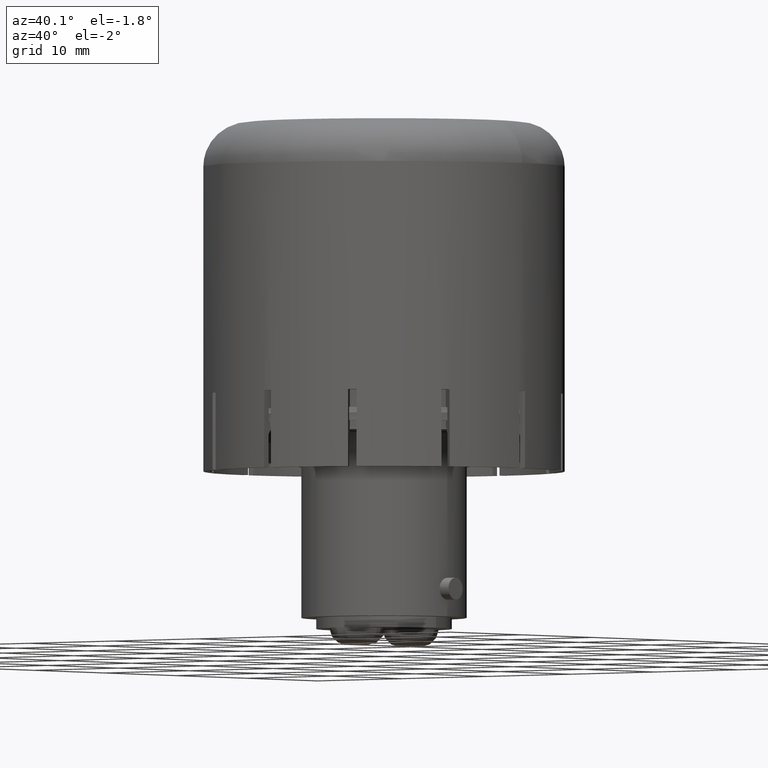
[diagram: clean part render]
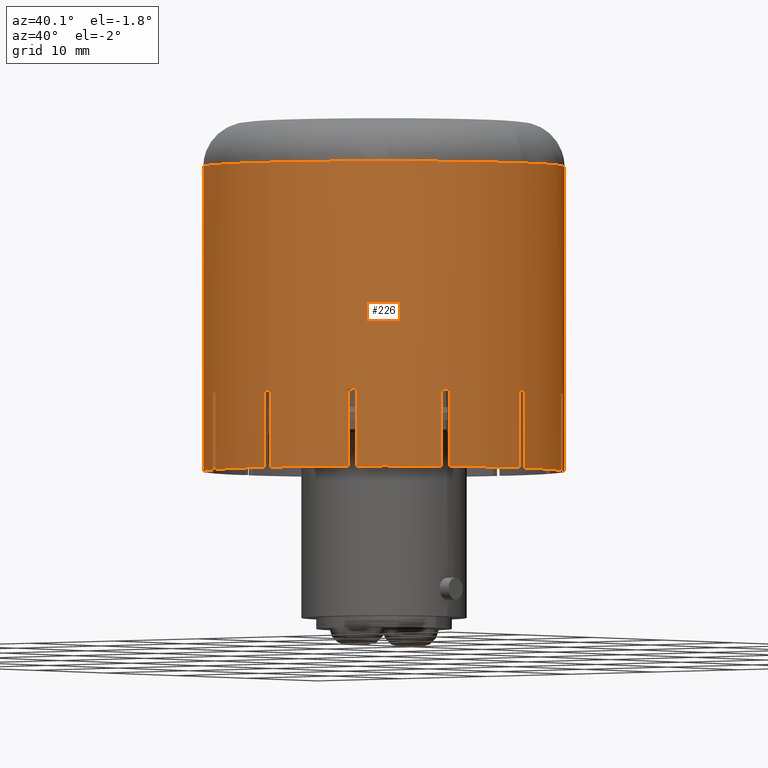
[diagram: same view with one face highlighted and labeled with its STEP entity id]
A machine part, auxiliary view. The second image highlights one B-rep face of the part: STEP entity #226.
In plain terms, the highlighted cylindrical surface (bore or boss wall) has radius 16.4 mm, axis along (0, 0, -1).
Its self-contained STEP definition (entity closure, byte-faithful):
#58=FACE_BOUND('',#638,.T.);
#59=FACE_BOUND('',#639,.T.);
#226=ADVANCED_FACE('',(#58,#59),#401,.T.);
#401=CYLINDRICAL_SURFACE('',#3757,16.4);
#638=EDGE_LOOP('',(#1135));
#639=EDGE_LOOP('',(#1136,#1137,#1138,#1139,#1140,#1141,#1142,#1143,#1144,
#1145,#1146,#1147,#1148,#1149,#1150,#1151,#1152,#1153,#1154,#1155,#1156,
#1157,#1158,#1159,#1160,#1161,#1162,#1163,#1164,#1165,#1166,#1167,#1168,
#1169,#1170,#1171,#1172,#1173,#1174,#1175,#1176,#1177,#1178,#1179,#1180,
#1181,#1182,#1183));
#866=CIRCLE('',#3732,16.4);
#867=CIRCLE('',#3733,16.4);
#868=CIRCLE('',#3734,16.4);
#869=CIRCLE('',#3735,16.4);
#870=CIRCLE('',#3736,16.4);
#871=CIRCLE('',#3737,16.4);
#872=CIRCLE('',#3738,16.4);
#873=CIRCLE('',#3739,16.4);
#874=CIRCLE('',#3740,16.4);
#875=CIRCLE('',#3741,16.4);
#876=CIRCLE('',#3742,16.4);
#877=CIRCLE('',#3743,16.4);
#878=CIRCLE('',#3744,16.4);
#879=CIRCLE('',#3745,16.4);
#880=CIRCLE('',#3746,16.4);
#881=CIRCLE('',#3747,16.4);
#882=CIRCLE('',#3748,16.4);
#883=CIRCLE('',#3749,16.4);
#884=CIRCLE('',#3750,16.4);
#885=CIRCLE('',#3751,16.4);
#886=CIRCLE('',#3752,16.4);
#887=CIRCLE('',#3753,16.4);
#888=CIRCLE('',#3754,16.4);
#889=CIRCLE('',#3755,16.4);
#890=CIRCLE('',#3756,16.4);
#1135=ORIENTED_EDGE('',*,*,#2572,.T.);
#1136=ORIENTED_EDGE('',*,*,#2573,.F.);
#1137=ORIENTED_EDGE('',*,*,#2574,.F.);
#1138=ORIENTED_EDGE('',*,*,#2575,.T.);
#1139=ORIENTED_EDGE('',*,*,#2576,.F.);
#1140=ORIENTED_EDGE('',*,*,#2577,.F.);
#1141=ORIENTED_EDGE('',*,*,#2578,.F.);
#1142=ORIENTED_EDGE('',*,*,#2579,.T.);
#1143=ORIENTED_EDGE('',*,*,#2580,.F.);
#1144=ORIENTED_EDGE('',*,*,#2581,.F.);
#1145=ORIENTED_EDGE('',*,*,#2582,.F.);
#1146=ORIENTED_EDGE('',*,*,#2583,.T.);
#1147=ORIENTED_EDGE('',*,*,#2584,.F.);
#1148=ORIENTED_EDGE('',*,*,#2585,.F.);
#1149=ORIENTED_EDGE('',*,*,#2586,.F.);
#1150=ORIENTED_EDGE('',*,*,#2587,.T.);
#1151=ORIENTED_EDGE('',*,*,#2588,.F.);
#1152=ORIENTED_EDGE('',*,*,#2589,.F.);
#1153=ORIENTED_EDGE('',*,*,#2590,.F.);
#1154=ORIENTED_EDGE('',*,*,#2591,.T.);
#1155=ORIENTED_EDGE('',*,*,#2592,.F.);
#1156=ORIENTED_EDGE('',*,*,#2593,.F.);
#1157=ORIENTED_EDGE('',*,*,#2594,.F.);
#1158=ORIENTED_EDGE('',*,*,#2595,.T.);
#1159=ORIENTED_EDGE('',*,*,#2596,.F.);
#1160=ORIENTED_EDGE('',*,*,#2597,.F.);
#1161=ORIENTED_EDGE('',*,*,#2598,.F.);
#1162=ORIENTED_EDGE('',*,*,#2599,.T.);
#1163=ORIENTED_EDGE('',*,*,#2600,.F.);
#1164=ORIENTED_EDGE('',*,*,#2601,.F.);
#1165=ORIENTED_EDGE('',*,*,#2602,.F.);
#1166=ORIENTED_EDGE('',*,*,#2603,.T.);
#1167=ORIENTED_EDGE('',*,*,#2604,.F.);
#1168=ORIENTED_EDGE('',*,*,#2605,.F.);
#1169=ORIENTED_EDGE('',*,*,#2606,.F.);
#1170=ORIENTED_EDGE('',*,*,#2607,.T.);
#1171=ORIENTED_EDGE('',*,*,#2608,.F.);
#1172=ORIENTED_EDGE('',*,*,#2609,.F.);
#1173=ORIENTED_EDGE('',*,*,#2610,.F.);
#1174=ORIENTED_EDGE('',*,*,#2611,.T.);
#1175=ORIENTED_EDGE('',*,*,#2612,.F.);
#1176=ORIENTED_EDGE('',*,*,#2613,.F.);
#1177=ORIENTED_EDGE('',*,*,#2614,.F.);
#1178=ORIENTED_EDGE('',*,*,#2615,.T.);
#1179=ORIENTED_EDGE('',*,*,#2616,.F.);
#1180=ORIENTED_EDGE('',*,*,#2617,.F.);
#1181=ORIENTED_EDGE('',*,*,#2618,.F.);
#1182=ORIENTED_EDGE('',*,*,#2619,.T.);
#1183=ORIENTED_EDGE('',*,*,#2620,.F.);
#2221=VERTEX_POINT('',#5400);
#2222=VERTEX_POINT('',#5402);
#2223=VERTEX_POINT('',#5403);
#2224=VERTEX_POINT('',#5405);
#2225=VERTEX_POINT('',#5407);
#2226=VERTEX_POINT('',#5409);
#2227=VERTEX_POINT('',#5411);
#2228=VERTEX_POINT('',#5413);
#2229=VERTEX_POINT('',#5415);
#2230=VERTEX_POINT('',#5417);
#2231=VERTEX_POINT('',#5419);
#2232=VERTEX_POINT('',#5421);
#2233=VERTEX_POINT('',#5423);
#2234=VERTEX_POINT('',#5425);
#2235=VERTEX_POINT('',#5427);
#2236=VERTEX_POINT('',#5429);
#2237=VERTEX_POINT('',#5431);
#2238=VERTEX_POINT('',#5433);
#2239=VERTEX_POINT('',#5435);
#2240=VERTEX_POINT('',#5437);
#2241=VERTEX_POINT('',#5439);
#2242=VERTEX_POINT('',#5441);
#2243=VERTEX_POINT('',#5443);
#2244=VERTEX_POINT('',#5445);
#2245=VERTEX_POINT('',#5447);
#2246=VERTEX_POINT('',#5449);
#2247=VERTEX_POINT('',#5451);
#2248=VERTEX_POINT('',#5453);
#2249=VERTEX_POINT('',#5455);
#2250=VERTEX_POINT('',#5457);
#2251=VERTEX_POINT('',#5459);
#2252=VERTEX_POINT('',#5461);
#2253=VERTEX_POINT('',#5463);
#2254=VERTEX_POINT('',#5465);
#2255=VERTEX_POINT('',#5467);
#2256=VERTEX_POINT('',#5469);
#2257=VERTEX_POINT('',#5471);
#2258=VERTEX_POINT('',#5473);
#2259=VERTEX_POINT('',#5475);
#2260=VERTEX_POINT('',#5477);
#2261=VERTEX_POINT('',#5479);
#2262=VERTEX_POINT('',#5481);
#2263=VERTEX_POINT('',#5483);
#2264=VERTEX_POINT('',#5485);
#2265=VERTEX_POINT('',#5487);
#2266=VERTEX_POINT('',#5489);
#2267=VERTEX_POINT('',#5491);
#2268=VERTEX_POINT('',#5493);
#2269=VERTEX_POINT('',#5495);
#2572=EDGE_CURVE('',#2221,#2221,#866,.T.);
#2573=EDGE_CURVE('',#2222,#2223,#3067,.T.);
#2574=EDGE_CURVE('',#2224,#2222,#867,.T.);
#2575=EDGE_CURVE('',#2224,#2225,#3068,.T.);
#2576=EDGE_CURVE('',#2226,#2225,#868,.T.);
#2577=EDGE_CURVE('',#2227,#2226,#3069,.T.);
#2578=EDGE_CURVE('',#2228,#2227,#869,.T.);
#2579=EDGE_CURVE('',#2228,#2229,#3070,.T.);
#2580=EDGE_CURVE('',#2230,#2229,#870,.T.);
#2581=EDGE_CURVE('',#2231,#2230,#3071,.T.);
#2582=EDGE_CURVE('',#2232,#2231,#871,.T.);
#2583=EDGE_CURVE('',#2232,#2233,#3072,.T.);
#2584=EDGE_CURVE('',#2234,#2233,#872,.T.);
#2585=EDGE_CURVE('',#2235,#2234,#3073,.T.);
#2586=EDGE_CURVE('',#2236,#2235,#873,.T.);
#2587=EDGE_CURVE('',#2236,#2237,#3074,.T.);
#2588=EDGE_CURVE('',#2238,#2237,#874,.T.);
#2589=EDGE_CURVE('',#2239,#2238,#3075,.T.);
#2590=EDGE_CURVE('',#2240,#2239,#875,.T.);
#2591=EDGE_CURVE('',#2240,#2241,#3076,.T.);
#2592=EDGE_CURVE('',#2242,#2241,#876,.T.);
#2593=EDGE_CURVE('',#2243,#2242,#3077,.T.);
#2594=EDGE_CURVE('',#2244,#2243,#877,.T.);
#2595=EDGE_CURVE('',#2244,#2245,#3078,.T.);
#2596=EDGE_CURVE('',#2246,#2245,#878,.T.);
#2597=EDGE_CURVE('',#2247,#2246,#3079,.T.);
#2598=EDGE_CURVE('',#2248,#2247,#879,.T.);
#2599=EDGE_CURVE('',#2248,#2249,#3080,.T.);
#2600=EDGE_CURVE('',#2250,#2249,#880,.T.);
#2601=EDGE_CURVE('',#2251,#2250,#3081,.T.);
#2602=EDGE_CURVE('',#2252,#2251,#881,.T.);
#2603=EDGE_CURVE('',#2252,#2253,#3082,.T.);
#2604=EDGE_CURVE('',#2254,#2253,#882,.T.);
#2605=EDGE_CURVE('',#2255,#2254,#3083,.T.);
#2606=EDGE_CURVE('',#2256,#2255,#883,.T.);
#2607=EDGE_CURVE('',#2256,#2257,#3084,.T.);
#2608=EDGE_CURVE('',#2258,#2257,#884,.T.);
#2609=EDGE_CURVE('',#2259,#2258,#3085,.T.);
#2610=EDGE_CURVE('',#2260,#2259,#885,.T.);
#2611=EDGE_CURVE('',#2260,#2261,#3086,.T.);
#2612=EDGE_CURVE('',#2262,#2261,#886,.T.);
#2613=EDGE_CURVE('',#2263,#2262,#3087,.T.);
#2614=EDGE_CURVE('',#2264,#2263,#887,.T.);
#2615=EDGE_CURVE('',#2264,#2265,#3088,.T.);
#2616=EDGE_CURVE('',#2266,#2265,#888,.T.);
#2617=EDGE_CURVE('',#2267,#2266,#3089,.T.);
#2618=EDGE_CURVE('',#2268,#2267,#889,.T.);
#2619=EDGE_CURVE('',#2268,#2269,#3090,.T.);
#2620=EDGE_CURVE('',#2223,#2269,#890,.T.);
#3067=LINE('',#5401,#3387);
#3068=LINE('',#5406,#3388);
#3069=LINE('',#5410,#3389);
#3070=LINE('',#5414,#3390);
#3071=LINE('',#5418,#3391);
#3072=LINE('',#5422,#3392);
#3073=LINE('',#5426,#3393);
#3074=LINE('',#5430,#3394);
#3075=LINE('',#5434,#3395);
#3076=LINE('',#5438,#3396);
#3077=LINE('',#5442,#3397);
#3078=LINE('',#5446,#3398);
#3079=LINE('',#5450,#3399);
#3080=LINE('',#5454,#3400);
#3081=LINE('',#5458,#3401);
#3082=LINE('',#5462,#3402);
#3083=LINE('',#5466,#3403);
#3084=LINE('',#5470,#3404);
#3085=LINE('',#5474,#3405);
#3086=LINE('',#5478,#3406);
#3087=LINE('',#5482,#3407);
#3088=LINE('',#5486,#3408);
#3089=LINE('',#5490,#3409);
#3090=LINE('',#5494,#3410);
#3387=VECTOR('',#4256,1.);
#3388=VECTOR('',#4259,1.);
#3389=VECTOR('',#4262,1.);
#3390=VECTOR('',#4265,1.);
#3391=VECTOR('',#4268,1.);
#3392=VECTOR('',#4271,1.);
#3393=VECTOR('',#4274,1.);
#3394=VECTOR('',#4277,1.);
#3395=VECTOR('',#4280,1.);
#3396=VECTOR('',#4283,1.);
#3397=VECTOR('',#4286,1.);
#3398=VECTOR('',#4289,1.);
#3399=VECTOR('',#4292,1.);
#3400=VECTOR('',#4295,1.);
#3401=VECTOR('',#4298,1.);
#3402=VECTOR('',#4301,1.);
#3403=VECTOR('',#4304,1.);
#3404=VECTOR('',#4307,1.);
#3405=VECTOR('',#4310,1.);
#3406=VECTOR('',#4313,1.);
#3407=VECTOR('',#4316,1.);
#3408=VECTOR('',#4319,1.);
#3409=VECTOR('',#4322,1.);
#3410=VECTOR('',#4325,1.);
#3732=AXIS2_PLACEMENT_3D('',#5399,#4254,#4255);
#3733=AXIS2_PLACEMENT_3D('',#5404,#4257,#4258);
#3734=AXIS2_PLACEMENT_3D('',#5408,#4260,#4261);
#3735=AXIS2_PLACEMENT_3D('',#5412,#4263,#4264);
#3736=AXIS2_PLACEMENT_3D('',#5416,#4266,#4267);
#3737=AXIS2_PLACEMENT_3D('',#5420,#4269,#4270);
#3738=AXIS2_PLACEMENT_3D('',#5424,#4272,#4273);
#3739=AXIS2_PLACEMENT_3D('',#5428,#4275,#4276);
#3740=AXIS2_PLACEMENT_3D('',#5432,#4278,#4279);
#3741=AXIS2_PLACEMENT_3D('',#5436,#4281,#4282);
#3742=AXIS2_PLACEMENT_3D('',#5440,#4284,#4285);
#3743=AXIS2_PLACEMENT_3D('',#5444,#4287,#4288);
#3744=AXIS2_PLACEMENT_3D('',#5448,#4290,#4291);
#3745=AXIS2_PLACEMENT_3D('',#5452,#4293,#4294);
#3746=AXIS2_PLACEMENT_3D('',#5456,#4296,#4297);
#3747=AXIS2_PLACEMENT_3D('',#5460,#4299,#4300);
#3748=AXIS2_PLACEMENT_3D('',#5464,#4302,#4303);
#3749=AXIS2_PLACEMENT_3D('',#5468,#4305,#4306);
#3750=AXIS2_PLACEMENT_3D('',#5472,#4308,#4309);
#3751=AXIS2_PLACEMENT_3D('',#5476,#4311,#4312);
#3752=AXIS2_PLACEMENT_3D('',#5480,#4314,#4315);
#3753=AXIS2_PLACEMENT_3D('',#5484,#4317,#4318);
#3754=AXIS2_PLACEMENT_3D('',#5488,#4320,#4321);
#3755=AXIS2_PLACEMENT_3D('',#5492,#4323,#4324);
#3756=AXIS2_PLACEMENT_3D('',#5496,#4326,#4327);
#3757=AXIS2_PLACEMENT_3D('',#5497,#4328,#4329);
#4254=DIRECTION('',(0.,0.,-1.));
#4255=DIRECTION('',(1.,0.,0.));
#4256=DIRECTION('',(0.,0.,1.));
#4257=DIRECTION('',(0.,0.,-1.));
#4258=DIRECTION('',(1.,0.,0.));
#4259=DIRECTION('',(0.,0.,1.));
#4260=DIRECTION('',(0.,0.,-1.));
#4261=DIRECTION('',(-1.,0.,0.));
#4262=DIRECTION('',(0.,0.,1.));
#4263=DIRECTION('',(0.,0.,-1.));
#4264=DIRECTION('',(1.,0.,0.));
#4265=DIRECTION('',(0.,0.,1.));
#4266=DIRECTION('',(0.,0.,-1.));
#4267=DIRECTION('',(-1.,0.,0.));
#4268=DIRECTION('',(0.,0.,1.));
#4269=DIRECTION('',(0.,0.,-1.));
#4270=DIRECTION('',(1.,0.,0.));
#4271=DIRECTION('',(0.,0.,1.));
#4272=DIRECTION('',(0.,0.,-1.));
#4273=DIRECTION('',(-1.,0.,0.));
#4274=DIRECTION('',(0.,0.,1.));
#4275=DIRECTION('',(0.,0.,-1.));
#4276=DIRECTION('',(1.,0.,0.));
#4277=DIRECTION('',(0.,0.,1.));
#4278=DIRECTION('',(0.,0.,-1.));
#4279=DIRECTION('',(-1.,0.,0.));
#4280=DIRECTION('',(0.,0.,1.));
#4281=DIRECTION('',(0.,0.,-1.));
#4282=DIRECTION('',(1.,0.,0.));
#4283=DIRECTION('',(0.,0.,1.));
#4284=DIRECTION('',(0.,0.,-1.));
#4285=DIRECTION('',(-1.,0.,0.));
#4286=DIRECTION('',(0.,0.,1.));
#4287=DIRECTION('',(0.,0.,-1.));
#4288=DIRECTION('',(1.,0.,0.));
#4289=DIRECTION('',(0.,0.,1.));
#4290=DIRECTION('',(0.,0.,-1.));
#4291=DIRECTION('',(-1.,0.,0.));
#4292=DIRECTION('',(0.,0.,1.));
#4293=DIRECTION('',(0.,0.,-1.));
#4294=DIRECTION('',(1.,0.,0.));
#4295=DIRECTION('',(0.,0.,1.));
#4296=DIRECTION('',(0.,0.,-1.));
#4297=DIRECTION('',(-1.,0.,0.));
#4298=DIRECTION('',(0.,0.,1.));
#4299=DIRECTION('',(0.,0.,-1.));
#4300=DIRECTION('',(1.,0.,0.));
#4301=DIRECTION('',(0.,0.,1.));
#4302=DIRECTION('',(0.,0.,-1.));
#4303=DIRECTION('',(-1.,0.,0.));
#4304=DIRECTION('',(0.,0.,1.));
#4305=DIRECTION('',(0.,0.,-1.));
#4306=DIRECTION('',(1.,0.,0.));
#4307=DIRECTION('',(0.,0.,1.));
#4308=DIRECTION('',(0.,0.,-1.));
#4309=DIRECTION('',(-1.,0.,0.));
#4310=DIRECTION('',(0.,0.,1.));
#4311=DIRECTION('',(0.,0.,-1.));
#4312=DIRECTION('',(1.,0.,0.));
#4313=DIRECTION('',(0.,0.,1.));
#4314=DIRECTION('',(0.,0.,-1.));
#4315=DIRECTION('',(-1.,0.,0.));
#4316=DIRECTION('',(0.,0.,1.));
#4317=DIRECTION('',(0.,0.,-1.));
#4318=DIRECTION('',(1.,0.,0.));
#4319=DIRECTION('',(0.,0.,1.));
#4320=DIRECTION('',(0.,0.,-1.));
#4321=DIRECTION('',(-1.,0.,0.));
#4322=DIRECTION('',(0.,0.,1.));
#4323=DIRECTION('',(0.,0.,-1.));
#4324=DIRECTION('',(1.,0.,0.));
#4325=DIRECTION('',(0.,0.,1.));
#4326=DIRECTION('',(0.,0.,-1.));
#4327=DIRECTION('',(-1.,0.,0.));
#4328=DIRECTION('',(0.,0.,-1.));
#4329=DIRECTION('',(-1.,0.,0.));
#5399=CARTESIAN_POINT('',(9.86076131526265E-032,0.,42.));
#5400=CARTESIAN_POINT('',(16.4,0.,42.));
#5401=CARTESIAN_POINT('',(-8.54397077428147,13.9985914794391,46.));
#5402=CARTESIAN_POINT('',(-8.54397077428147,13.9985914794391,14.3));
#5403=CARTESIAN_POINT('',(-8.54397077428147,13.9985914794391,21.3));
#5404=CARTESIAN_POINT('',(9.86076131526265E-032,0.,14.3));
#5405=CARTESIAN_POINT('',(-13.9985914794391,8.54397077428144,14.3));
#5406=CARTESIAN_POINT('',(-13.9985914794391,8.54397077428144,46.));
#5407=CARTESIAN_POINT('',(-13.9985914794391,8.54397077428144,21.3));
#5408=CARTESIAN_POINT('',(9.86076131526265E-032,0.,21.3));
#5409=CARTESIAN_POINT('',(-14.3985914794391,7.85115045125389,21.3));
#5410=CARTESIAN_POINT('',(-14.3985914794391,7.85115045125389,46.));
#5411=CARTESIAN_POINT('',(-14.3985914794391,7.85115045125389,14.3));
#5412=CARTESIAN_POINT('',(9.86076131526265E-032,0.,14.3));
#5413=CARTESIAN_POINT('',(-16.3951212255354,0.399999999999982,14.3));
#5414=CARTESIAN_POINT('',(-16.3951212255354,0.399999999999985,46.));
#5415=CARTESIAN_POINT('',(-16.3951212255354,0.399999999999985,21.3));
#5416=CARTESIAN_POINT('',(9.86076131526265E-032,0.,21.3));
#5417=CARTESIAN_POINT('',(-16.3951212255354,-0.400000000000015,21.3));
#5418=CARTESIAN_POINT('',(-16.3951212255354,-0.400000000000015,46.));
#5419=CARTESIAN_POINT('',(-16.3951212255354,-0.400000000000016,14.3));
#5420=CARTESIAN_POINT('',(9.86076131526265E-032,0.,14.3));
#5421=CARTESIAN_POINT('',(-14.3985914794391,-7.85115045125391,14.3));
#5422=CARTESIAN_POINT('',(-14.3985914794391,-7.85115045125392,46.));
#5423=CARTESIAN_POINT('',(-14.3985914794391,-7.85115045125392,21.3));
#5424=CARTESIAN_POINT('',(9.86076131526265E-032,0.,21.3));
#5425=CARTESIAN_POINT('',(-13.9985914794391,-8.54397077428147,21.3));
#5426=CARTESIAN_POINT('',(-13.9985914794391,-8.54397077428147,46.));
#5427=CARTESIAN_POINT('',(-13.9985914794391,-8.54397077428147,14.3));
#5428=CARTESIAN_POINT('',(9.86076131526265E-032,0.,14.3));
#5429=CARTESIAN_POINT('',(-8.54397077428144,-13.9985914794391,14.3));
#5430=CARTESIAN_POINT('',(-8.54397077428144,-13.9985914794391,46.));
#5431=CARTESIAN_POINT('',(-8.54397077428144,-13.9985914794391,21.3));
#5432=CARTESIAN_POINT('',(9.86076131526265E-032,0.,21.3));
#5433=CARTESIAN_POINT('',(-7.85115045125389,-14.3985914794391,21.3));
#5434=CARTESIAN_POINT('',(-7.85115045125389,-14.3985914794391,46.));
#5435=CARTESIAN_POINT('',(-7.85115045125389,-14.3985914794391,14.3));
#5436=CARTESIAN_POINT('',(9.86076131526265E-032,0.,14.3));
#5437=CARTESIAN_POINT('',(-0.399999999999989,-16.3951212255354,14.3));
#5438=CARTESIAN_POINT('',(-0.399999999999989,-16.3951212255354,46.));
#5439=CARTESIAN_POINT('',(-0.399999999999989,-16.3951212255354,21.3));
#5440=CARTESIAN_POINT('',(9.86076131526265E-032,0.,21.3));
#5441=CARTESIAN_POINT('',(0.400000000000011,-16.3951212255354,21.3));
#5442=CARTESIAN_POINT('',(0.400000000000011,-16.3951212255354,46.));
#5443=CARTESIAN_POINT('',(0.400000000000011,-16.3951212255354,14.3));
#5444=CARTESIAN_POINT('',(9.86076131526265E-032,0.,14.3));
#5445=CARTESIAN_POINT('',(7.85115045125391,-14.3985914794391,14.3));
#5446=CARTESIAN_POINT('',(7.85115045125391,-14.3985914794391,46.));
#5447=CARTESIAN_POINT('',(7.85115045125391,-14.3985914794391,21.3));
#5448=CARTESIAN_POINT('',(9.86076131526265E-032,0.,21.3));
#5449=CARTESIAN_POINT('',(8.54397077428146,-13.9985914794391,21.3));
#5450=CARTESIAN_POINT('',(8.54397077428146,-13.9985914794391,46.));
#5451=CARTESIAN_POINT('',(8.54397077428146,-13.9985914794391,14.3));
#5452=CARTESIAN_POINT('',(9.86076131526265E-032,0.,14.3));
#5453=CARTESIAN_POINT('',(13.9985914794391,-8.54397077428145,14.3));
#5454=CARTESIAN_POINT('',(13.9985914794391,-8.54397077428145,46.));
#5455=CARTESIAN_POINT('',(13.9985914794391,-8.54397077428145,21.3));
#5456=CARTESIAN_POINT('',(9.86076131526265E-032,0.,21.3));
#5457=CARTESIAN_POINT('',(14.3985914794391,-7.8511504512539,21.3));
#5458=CARTESIAN_POINT('',(14.3985914794391,-7.8511504512539,46.));
#5459=CARTESIAN_POINT('',(14.3985914794391,-7.8511504512539,14.3));
#5460=CARTESIAN_POINT('',(9.86076131526265E-032,0.,14.3));
#5461=CARTESIAN_POINT('',(16.3951212255354,-0.399999999999991,14.3));
#5462=CARTESIAN_POINT('',(16.3951212255354,-0.399999999999994,46.));
#5463=CARTESIAN_POINT('',(16.3951212255354,-0.399999999999994,21.3));
#5464=CARTESIAN_POINT('',(9.86076131526265E-032,0.,21.3));
#5465=CARTESIAN_POINT('',(16.3951212255354,0.400000000000006,21.3));
#5466=CARTESIAN_POINT('',(16.3951212255354,0.400000000000006,46.));
#5467=CARTESIAN_POINT('',(16.3951212255354,0.400000000000007,14.3));
#5468=CARTESIAN_POINT('',(9.86076131526265E-032,0.,14.3));
#5469=CARTESIAN_POINT('',(14.3985914794391,7.85115045125391,14.3));
#5470=CARTESIAN_POINT('',(14.3985914794391,7.85115045125391,46.));
#5471=CARTESIAN_POINT('',(14.3985914794391,7.85115045125391,21.3));
#5472=CARTESIAN_POINT('',(9.86076131526265E-032,0.,21.3));
#5473=CARTESIAN_POINT('',(13.9985914794391,8.54397077428146,21.3));
#5474=CARTESIAN_POINT('',(13.9985914794391,8.54397077428146,46.));
#5475=CARTESIAN_POINT('',(13.9985914794391,8.54397077428146,14.3));
#5476=CARTESIAN_POINT('',(9.86076131526265E-032,0.,14.3));
#5477=CARTESIAN_POINT('',(8.54397077428145,13.9985914794391,14.3));
#5478=CARTESIAN_POINT('',(8.54397077428145,13.9985914794391,46.));
#5479=CARTESIAN_POINT('',(8.54397077428145,13.9985914794391,21.3));
#5480=CARTESIAN_POINT('',(9.86076131526265E-032,0.,21.3));
#5481=CARTESIAN_POINT('',(7.8511504512539,14.3985914794391,21.3));
#5482=CARTESIAN_POINT('',(7.8511504512539,14.3985914794391,46.));
#5483=CARTESIAN_POINT('',(7.8511504512539,14.3985914794391,14.3));
#5484=CARTESIAN_POINT('',(9.86076131526265E-032,0.,14.3));
#5485=CARTESIAN_POINT('',(0.399999999999998,16.3951212255354,14.3));
#5486=CARTESIAN_POINT('',(0.399999999999998,16.3951212255354,46.));
#5487=CARTESIAN_POINT('',(0.399999999999998,16.3951212255354,21.3));
#5488=CARTESIAN_POINT('',(9.86076131526265E-032,0.,21.3));
#5489=CARTESIAN_POINT('',(-0.400000000000002,16.3951212255354,21.3));
#5490=CARTESIAN_POINT('',(-0.400000000000002,16.3951212255354,46.));
#5491=CARTESIAN_POINT('',(-0.400000000000002,16.3951212255354,14.3));
#5492=CARTESIAN_POINT('',(9.86076131526265E-032,0.,14.3));
#5493=CARTESIAN_POINT('',(-7.85115045125392,14.3985914794391,14.3));
#5494=CARTESIAN_POINT('',(-7.85115045125392,14.3985914794391,46.));
#5495=CARTESIAN_POINT('',(-7.85115045125392,14.3985914794391,21.3));
#5496=CARTESIAN_POINT('',(9.86076131526265E-032,0.,21.3));
#5497=CARTESIAN_POINT('',(9.86076131526265E-032,0.,46.));